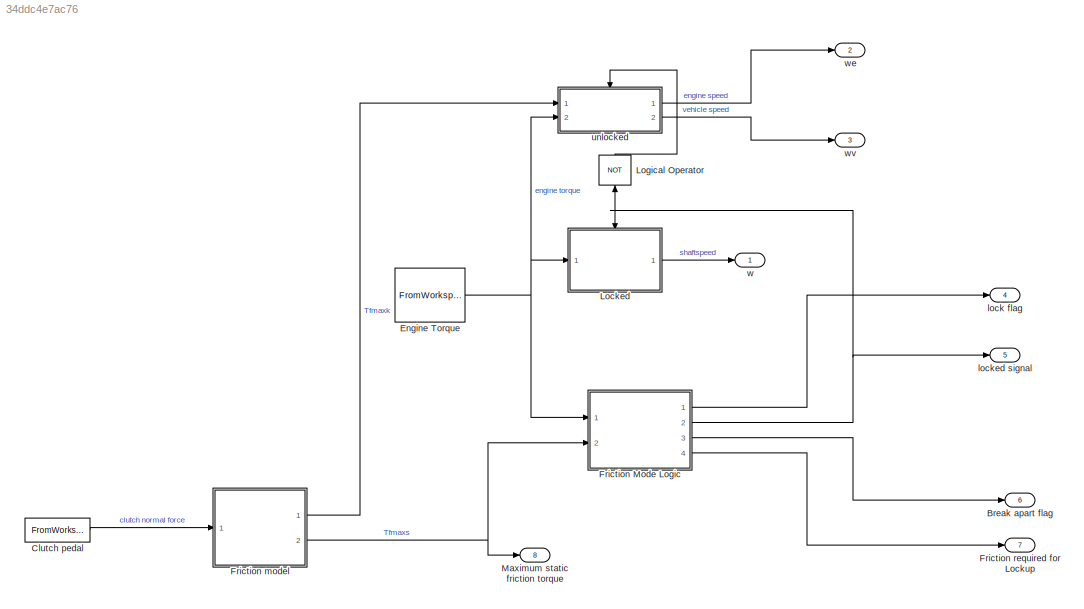
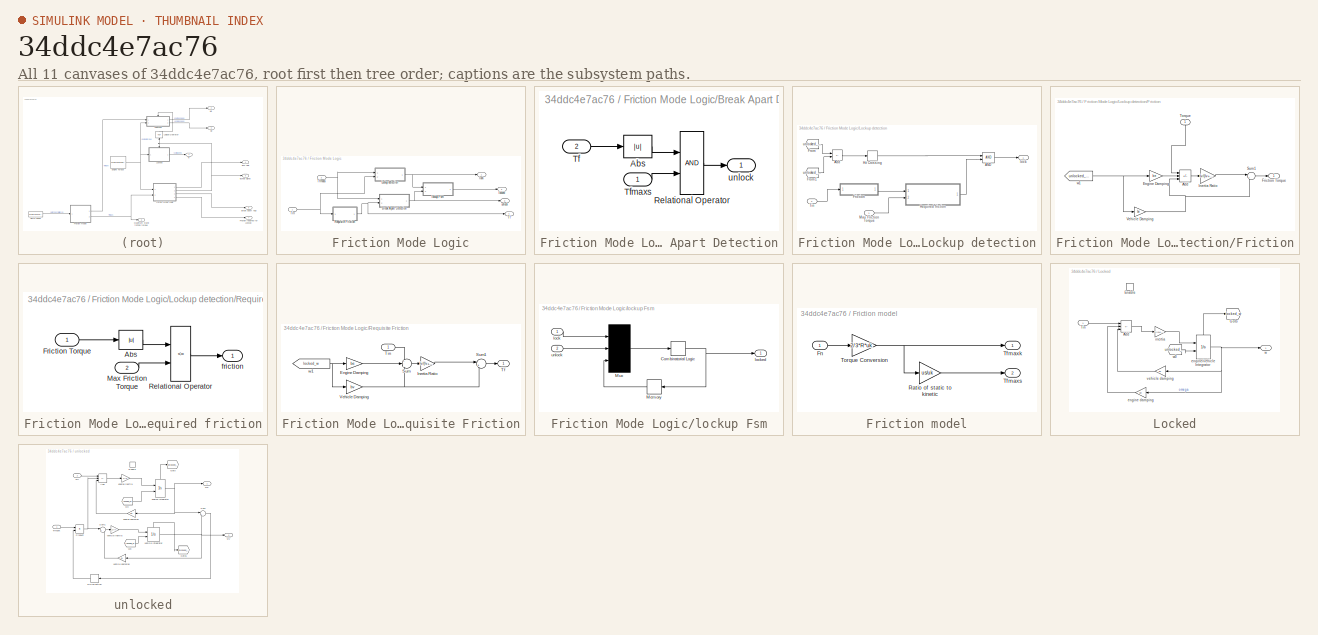
[diagram: thumbnail index - all 11 canvases of the model, root first then tree order]
MODEL slx_34ddc4e7ac76
KIND model
CONFIG AbsTol = auto
CONFIG EnableMultiTasking = off
CONFIG FixedStep = auto
CONFIG InitFcn = Fn=[0 0;1 0.8;2 1.6;3 1.6;4 1.6;5 1.6;6 0.8;7 0;8 0;9 0;10 0];\nTin=[1 2;2 2;3 2;4 2;5 2;6 0;7 0;8 0;9 0;10 0];
CONFIG MaxStep = auto
CONFIG MinStep = auto
CONFIG PostLoadFcn = Fn=[0 0;1 0.8;2 1.6;3 1.6;4 1.6;5 1.6;6 0.8;7 0;8 0;9 0;10 0];\nTin=[1 2;2 2;3 2;4 2;5 2;6 0;7 0;8 0;9 0;10 0];
CONFIG RelTol = 1e-3
CONFIG SampleTimeConstraint = Unconstrained
CONFIG Solver = VariableStepAuto
CONFIG SolverName = VariableStepAuto
CONFIG StartTime = 0.0
CONFIG StopTime = 10.0
BLOCK [Outport] Break apart  flag
  Port = 6
BLOCK [FromWorkspace] Clutch pedal
  VariableName = Fn
BLOCK [FromWorkspace] Engine Torque
  VariableName = Tin
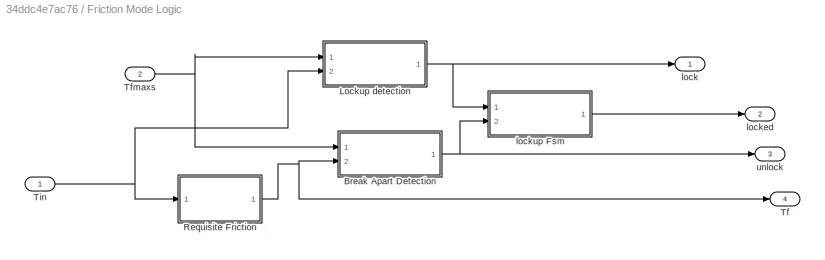
BLOCK [SubSystem] Friction Mode Logic
  Ports = [2, 4]
  RequestExecContextInheritance = off
BLOCK [SubSystem] Friction Mode Logic/Break  Apart Detection
  Ports = [2, 1]
  RequestExecContextInheritance = off
BLOCK [Abs] Friction Mode Logic/Break  Apart Detection/Abs
BLOCK [RelationalOperator] Friction Mode Logic/Break  Apart Detection/Relational Operator
  OutDataTypeStr = boolean
  Ports = [2, 1]
BLOCK [Inport] Friction Mode Logic/Break  Apart Detection/Tf
  Port = 2
BLOCK [Inport] Friction Mode Logic/Break  Apart Detection/Tfmaxs
BLOCK [Outport] Friction Mode Logic/Break  Apart Detection/unlock
  InitialOutput = 0
  VectorParamsAs1DForOutWhenUnconnected = off
BLOCK [SubSystem] Friction Mode Logic/Lockup detection
  Ports = [2, 1]
  RequestExecContextInheritance = off
BLOCK [Logic] Friction Mode Logic/Lockup detection/AND
  AllPortsSameDT = off
  IconShape = distinctive
  OutDataTypeStr = boolean
  Ports = [2, 1]
BLOCK [Sum] Friction Mode Logic/Lockup detection/Add
  IconShape = rectangular
  Inputs = +-
  Ports = [2, 1]
BLOCK [SubSystem] Friction Mode Logic/Lockup detection/Friction
  Ports = [1, 1]
  RequestExecContextInheritance = off
BLOCK [Sum] Friction Mode Logic/Lockup detection/Friction/Add
  IconShape = rectangular
  Inputs = +--
  Ports = [3, 1]
BLOCK [Gain] Friction Mode Logic/Lockup detection/Friction/Engine Damping
  Gain = be
  NameLocation = top
  OutDataTypeStr = Inherit: Same as input
  ParamDataTypeStr = Inherit: Same as input
  SaturateOnIntegerOverflow = on
BLOCK [Outport] Friction Mode Logic/Lockup detection/Friction/Friction Torque
  InitialOutput = 0
  VectorParamsAs1DForOutWhenUnconnected = off
BLOCK [Gain] Friction Mode Logic/Lockup detection/Friction/Inertia Ratio
  Gain = Iv/(Iv+Ie)
  OutDataTypeStr = Inherit: Same as input
  ParamDataTypeStr = Inherit: Same as input
  SaturateOnIntegerOverflow = on
BLOCK [Sum] Friction Mode Logic/Lockup detection/Friction/Sum1
  InputSameDT = on
  Inputs = |++
  OutDataTypeStr = Inherit: Same as first input
  Ports = [2, 1]
  SaturateOnIntegerOverflow = on
BLOCK [Inport] Friction Mode Logic/Lockup detection/Friction/Torque
  NameLocation = left
BLOCK [Gain] Friction Mode Logic/Lockup detection/Friction/Vehicle Damping
  Gain = bv
  OutDataTypeStr = Inherit: Same as input
  ParamDataTypeStr = Inherit: Same as input
  SaturateOnIntegerOverflow = on
BLOCK [From] Friction Mode Logic/Lockup detection/Friction/w1
  GotoTag = unlocked_we
  TagVisibility = global
BLOCK [From] Friction Mode Logic/Lockup detection/From
  GotoTag = unlocked_we
  TagVisibility = global
BLOCK [From] Friction Mode Logic/Lockup detection/From1
  GotoTag = unlocked_wv
  TagVisibility = global
BLOCK [HitCross] Friction Mode Logic/Lockup detection/Hit Crossing
  Ports = [1, 1]
BLOCK [Inport] Friction Mode Logic/Lockup detection/Max Friction Torque
BLOCK [SubSystem] Friction Mode Logic/Lockup detection/Required friction
  Ports = [2, 1]
  RequestExecContextInheritance = off
BLOCK [Abs] Friction Mode Logic/Lockup detection/Required friction/Abs
BLOCK [Inport] Friction Mode Logic/Lockup detection/Required friction/Friction Torque
BLOCK [Inport] Friction Mode Logic/Lockup detection/Required friction/Max Friction Torque
  Port = 2
BLOCK [RelationalOperator] Friction Mode Logic/Lockup detection/Required friction/Relational Operator
  Operator = <=
  OutDataTypeStr = boolean
  Ports = [2, 1]
BLOCK [Outport] Friction Mode Logic/Lockup detection/Required friction/friction
  InitialOutput = 0
  VectorParamsAs1DForOutWhenUnconnected = off
BLOCK [Inport] Friction Mode Logic/Lockup detection/Tin
  Port = 2
BLOCK [Outport] Friction Mode Logic/Lockup detection/lock
BLOCK [SubSystem] Friction Mode Logic/Requisite Friction
  Ports = [1, 1]
  RequestExecContextInheritance = off
BLOCK [Gain] Friction Mode Logic/Requisite Friction/Engine Damping
  Gain = be
  NameLocation = top
  OutDataTypeStr = Inherit: Same as input
  ParamDataTypeStr = Inherit: Same as input
  SaturateOnIntegerOverflow = on
BLOCK [Gain] Friction Mode Logic/Requisite Friction/Inertia Ratio
  Gain = Iv/(Iv+Ie)
  OutDataTypeStr = Inherit: Same as input
  ParamDataTypeStr = Inherit: Same as input
  SaturateOnIntegerOverflow = on
BLOCK [Sum] Friction Mode Logic/Requisite Friction/Sum
  InputSameDT = on
  Inputs = +--
  OutDataTypeStr = Inherit: Same as first input
  Ports = [3, 1]
  SaturateOnIntegerOverflow = on
BLOCK [Sum] Friction Mode Logic/Requisite Friction/Sum1
  InputSameDT = on
  Inputs = |++
  OutDataTypeStr = Inherit: Same as first input
  Ports = [2, 1]
  SaturateOnIntegerOverflow = on
BLOCK [Outport] Friction Mode Logic/Requisite Friction/Tf
  InitialOutput = 0
  VectorParamsAs1DForOutWhenUnconnected = off
BLOCK [Inport] Friction Mode Logic/Requisite Friction/Tin
BLOCK [Gain] Friction Mode Logic/Requisite Friction/Vehicle Damping
  Gain = bv
  OutDataTypeStr = Inherit: Same as input
  ParamDataTypeStr = Inherit: Same as input
  SaturateOnIntegerOverflow = on
BLOCK [From] Friction Mode Logic/Requisite Friction/w1
  GotoTag = locked_w
  NameLocation = top
  TagVisibility = global
BLOCK [Outport] Friction Mode Logic/Tf
  Port = 4
BLOCK [Inport] Friction Mode Logic/Tfmaxs
  Port = 2
BLOCK [Inport] Friction Mode Logic/Tin
BLOCK [Outport] Friction Mode Logic/lock
BLOCK [Outport] Friction Mode Logic/locked
  Port = 2
BLOCK [SubSystem] Friction Mode Logic/lockup Fsm
  Ports = [2, 1]
  RequestExecContextInheritance = off
BLOCK [CombinatorialLogic] Friction Mode Logic/lockup Fsm/Combinatorial Logic
  TruthTable = [0;1;0;0;1;1;1;0]
BLOCK [Memory] Friction Mode Logic/lockup Fsm/Memory
BLOCK [Mux] Friction Mode Logic/lockup Fsm/Mux
  Inputs = 3
  Ports = [3, 1]
BLOCK [Inport] Friction Mode Logic/lockup Fsm/lock
  NameLocation = top
BLOCK [Outport] Friction Mode Logic/lockup Fsm/locked
  InitialOutput = 0
  VectorParamsAs1DForOutWhenUnconnected = off
BLOCK [Inport] Friction Mode Logic/lockup Fsm/unlock
  Port = 2
BLOCK [Outport] Friction Mode Logic/unlock
  Port = 3
BLOCK [SubSystem] Friction model
  Ports = [1, 2]
  RequestExecContextInheritance = off
BLOCK [Inport] Friction model/Fn
BLOCK [Gain] Friction model/Ratio of static to kinetic
  Gain = us/uk
  OutDataTypeStr = Inherit: Same as input
  ParamDataTypeStr = Inherit: Same as input
  SaturateOnIntegerOverflow = on
BLOCK [Outport] Friction model/Tfmaxk
  InitialOutput = 0
  VectorParamsAs1DForOutWhenUnconnected = off
BLOCK [Outport] Friction model/Tfmaxs
  InitialOutput = 0
  Port = 2
  VectorParamsAs1DForOutWhenUnconnected = off
BLOCK [Gain] Friction model/Torque Conversion
  Gain = 2/3*R*uk
  OutDataTypeStr = Inherit: Same as input
  ParamDataTypeStr = Inherit: Same as input
  SaturateOnIntegerOverflow = on
BLOCK [Outport] Friction required for Lockup
  Port = 7
BLOCK [SubSystem] Locked
  Ports = [1, 1, 1]
  RequestExecContextInheritance = off
BLOCK [Sum] Locked/Add
  IconShape = rectangular
  Inputs = +--
  Ports = [3, 1]
BLOCK [EnablePort] Locked/Enable
  Ports = []
  StatesWhenEnabling = reset
BLOCK [Goto] Locked/Goto
  GotoTag = locked_w
  TagVisibility = global
BLOCK [Inport] Locked/Tin
BLOCK [Gain] Locked/engine damping
  Gain = be
BLOCK [Integrator] Locked/engine//vehicle Integrator
  InitialConditionSource = external
  Ports = [2, 1, 0, 0, 1]
  ShowStatePort = on
BLOCK [Gain] Locked/inertia
  Gain = 1/(Ie+Iv)
BLOCK [Gain] Locked/vehicle damping
  Gain = bv
BLOCK [Outport] Locked/w
BLOCK [From] Locked/w0
  GotoTag = unlocked_we
  TagVisibility = global
BLOCK [Logic] Logical Operator
  AllPortsSameDT = off
  IconShape = distinctive
  NameLocation = right
  Operator = NOT
  OutDataTypeStr = boolean
  Ports = [1, 1]
BLOCK [Outport] Maximum static friction torque
  Port = 8
BLOCK [Outport] lock flag
  Port = 4
BLOCK [Outport] locked signal
  Port = 5
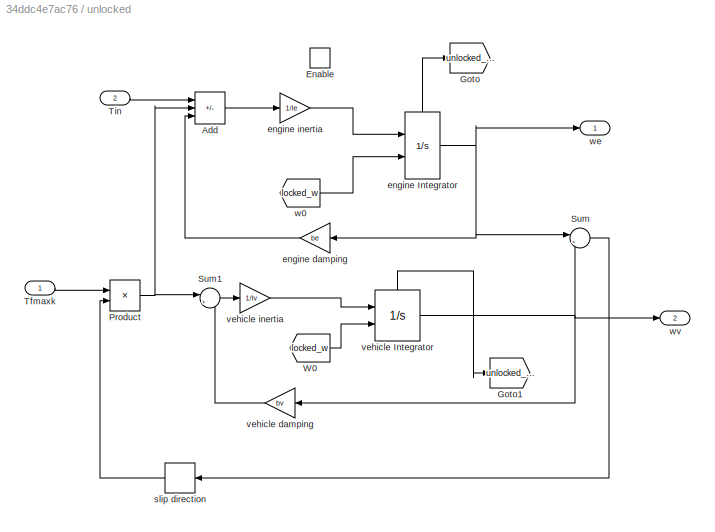
BLOCK [SubSystem] unlocked
  Ports = [2, 2, 1]
  RequestExecContextInheritance = off
BLOCK [Sum] unlocked/Add
  IconShape = rectangular
  Inputs = +--
  Ports = [3, 1]
BLOCK [EnablePort] unlocked/Enable
  Ports = []
  StatesWhenEnabling = reset
BLOCK [Goto] unlocked/Goto
  GotoTag = unlocked_we
  TagVisibility = global
BLOCK [Goto] unlocked/Goto1
  GotoTag = unlocked_wv
  TagVisibility = global
BLOCK [Product] unlocked/Product
  Ports = [2, 1]
BLOCK [Sum] unlocked/Sum
  Inputs = |+-
  Ports = [2, 1]
BLOCK [Sum] unlocked/Sum1
  Inputs = |+-
  Ports = [2, 1]
BLOCK [Inport] unlocked/Tfmaxk
BLOCK [Inport] unlocked/Tin
  Port = 2
BLOCK [From] unlocked/W0
  GotoTag = locked_w
  TagVisibility = global
BLOCK [Integrator] unlocked/engine Integrator
  InitialConditionSource = external
  Ports = [2, 1, 0, 0, 1]
  ShowStatePort = on
BLOCK [Gain] unlocked/engine damping
  Gain = be
BLOCK [Gain] unlocked/engine inertia
  Gain = 1/Ie
BLOCK [Signum] unlocked/slip direction
BLOCK [Integrator] unlocked/vehicle Integrator
  InitialConditionSource = external
  Ports = [2, 1, 0, 0, 1]
  ShowStatePort = on
BLOCK [Gain] unlocked/vehicle damping
  Gain = bv
BLOCK [Gain] unlocked/vehicle inertia
  Gain = 1/Iv
BLOCK [From] unlocked/w0
  GotoTag = locked_w
  TagVisibility = global
BLOCK [Outport] unlocked/we
BLOCK [Outport] unlocked/wv
  Port = 2
BLOCK [Outport] w
BLOCK [Outport] we
  Port = 2
BLOCK [Outport] wv
  Port = 3
LINE Clutch pedal:1 -> Friction model:1
NET Engine Torque:1 -> Friction Mode Logic:1, Locked:1, unlocked:2
LINE Friction Mode Logic/Break  Apart Detection/Abs:1 -> Friction Mode Logic/Break  Apart Detection/Relational Operator:1
LINE Friction Mode Logic/Break  Apart Detection/Relational Operator:1 -> Friction Mode Logic/Break  Apart Detection/unlock:1
LINE Friction Mode Logic/Break  Apart Detection/Tf:1 -> Friction Mode Logic/Break  Apart Detection/Abs:1
LINE Friction Mode Logic/Break  Apart Detection/Tfmaxs:1 -> Friction Mode Logic/Break  Apart Detection/Relational Operator:2
NET Friction Mode Logic/Break  Apart Detection:1 -> Friction Mode Logic/lockup Fsm:2, Friction Mode Logic/unlock:1
LINE Friction Mode Logic/Lockup detection/AND:1 -> Friction Mode Logic/Lockup detection/lock:1
LINE Friction Mode Logic/Lockup detection/Add:1 -> Friction Mode Logic/Lockup detection/Hit Crossing:1
LINE Friction Mode Logic/Lockup detection/Friction/Add:1 -> Friction Mode Logic/Lockup detection/Friction/Inertia Ratio:1
LINE Friction Mode Logic/Lockup detection/Friction/Engine Damping:1 -> Friction Mode Logic/Lockup detection/Friction/Add:2
LINE Friction Mode Logic/Lockup detection/Friction/Inertia Ratio:1 -> Friction Mode Logic/Lockup detection/Friction/Sum1:1
LINE Friction Mode Logic/Lockup detection/Friction/Sum1:1 -> Friction Mode Logic/Lockup detection/Friction/Friction Torque:1
LINE Friction Mode Logic/Lockup detection/Friction/Torque:1 -> Friction Mode Logic/Lockup detection/Friction/Add:1
NET Friction Mode Logic/Lockup detection/Friction/Vehicle Damping:1 -> Friction Mode Logic/Lockup detection/Friction/Add:3, Friction Mode Logic/Lockup detection/Friction/Sum1:2
NET Friction Mode Logic/Lockup detection/Friction/w1:1 -> Friction Mode Logic/Lockup detection/Friction/Engine Damping:1, Friction Mode Logic/Lockup detection/Friction/Vehicle Damping:1
LINE Friction Mode Logic/Lockup detection/Friction:1 -> Friction Mode Logic/Lockup detection/Required friction:1
LINE Friction Mode Logic/Lockup detection/From1:1 -> Friction Mode Logic/Lockup detection/Add:2
LINE Friction Mode Logic/Lockup detection/From:1 -> Friction Mode Logic/Lockup detection/Add:1
LINE Friction Mode Logic/Lockup detection/Hit Crossing:1 -> Friction Mode Logic/Lockup detection/AND:1
LINE Friction Mode Logic/Lockup detection/Max Friction Torque:1 -> Friction Mode Logic/Lockup detection/Required friction:2
LINE Friction Mode Logic/Lockup detection/Required friction/Abs:1 -> Friction Mode Logic/Lockup detection/Required friction/Relational Operator:1
LINE Friction Mode Logic/Lockup detection/Required friction/Friction Torque:1 -> Friction Mode Logic/Lockup detection/Required friction/Abs:1
LINE Friction Mode Logic/Lockup detection/Required friction/Max Friction Torque:1 -> Friction Mode Logic/Lockup detection/Required friction/Relational Operator:2
LINE Friction Mode Logic/Lockup detection/Required friction/Relational Operator:1 -> Friction Mode Logic/Lockup detection/Required friction/friction:1
LINE Friction Mode Logic/Lockup detection/Required friction:1 -> Friction Mode Logic/Lockup detection/AND:2
LINE Friction Mode Logic/Lockup detection/Tin:1 -> Friction Mode Logic/Lockup detection/Friction:1
NET Friction Mode Logic/Lockup detection:1 -> Friction Mode Logic/lock:1, Friction Mode Logic/lockup Fsm:1
LINE Friction Mode Logic/Requisite Friction/Engine Damping:1 -> Friction Mode Logic/Requisite Friction/Sum:2
LINE Friction Mode Logic/Requisite Friction/Inertia Ratio:1 -> Friction Mode Logic/Requisite Friction/Sum1:1
LINE Friction Mode Logic/Requisite Friction/Sum1:1 -> Friction Mode Logic/Requisite Friction/Tf:1
LINE Friction Mode Logic/Requisite Friction/Sum:1 -> Friction Mode Logic/Requisite Friction/Inertia Ratio:1
LINE Friction Mode Logic/Requisite Friction/Tin:1 -> Friction Mode Logic/Requisite Friction/Sum:1
NET Friction Mode Logic/Requisite Friction/Vehicle Damping:1 -> Friction Mode Logic/Requisite Friction/Sum1:2, Friction Mode Logic/Requisite Friction/Sum:3
NET Friction Mode Logic/Requisite Friction/w1:1 -> Friction Mode Logic/Requisite Friction/Engine Damping:1, Friction Mode Logic/Requisite Friction/Vehicle Damping:1
NET Friction Mode Logic/Requisite Friction:1 -> Friction Mode Logic/Break  Apart Detection:2, Friction Mode Logic/Tf:1
NET Friction Mode Logic/Tfmaxs:1 -> Friction Mode Logic/Break  Apart Detection:1, Friction Mode Logic/Lockup detection:1
NET Friction Mode Logic/Tin:1 -> Friction Mode Logic/Lockup detection:2, Friction Mode Logic/Requisite Friction:1
NET Friction Mode Logic/lockup Fsm/Combinatorial Logic:1 -> Friction Mode Logic/lockup Fsm/Memory:1, Friction Mode Logic/lockup Fsm/locked:1
LINE Friction Mode Logic/lockup Fsm/Memory:1 -> Friction Mode Logic/lockup Fsm/Mux:3
LINE Friction Mode Logic/lockup Fsm/Mux:1 -> Friction Mode Logic/lockup Fsm/Combinatorial Logic:1
LINE Friction Mode Logic/lockup Fsm/lock:1 -> Friction Mode Logic/lockup Fsm/Mux:1
LINE Friction Mode Logic/lockup Fsm/unlock:1 -> Friction Mode Logic/lockup Fsm/Mux:2
LINE Friction Mode Logic/lockup Fsm:1 -> Friction Mode Logic/locked:1
LINE Friction Mode Logic:1 -> lock flag:1
NET Friction Mode Logic:2 -> Locked:enable, Logical Operator:1, locked signal:1
LINE Friction Mode Logic:3 -> Break apart  flag:1
LINE Friction Mode Logic:4 -> Friction required for Lockup:1
LINE Friction model/Fn:1 -> Friction model/Torque Conversion:1
LINE Friction model/Ratio of static to kinetic:1 -> Friction model/Tfmaxs:1
NET Friction model/Torque Conversion:1 -> Friction model/Ratio of static to kinetic:1, Friction model/Tfmaxk:1
LINE Friction model:1 -> unlocked:1
NET Friction model:2 -> Friction Mode Logic:2, Maximum static friction torque:1
LINE Locked/Add:1 -> Locked/inertia:1
LINE Locked/Tin:1 -> Locked/Add:1
LINE Locked/engine damping:1 -> Locked/Add:2
NET Locked/engine//vehicle Integrator:1 -> Locked/engine damping:1, Locked/vehicle damping:1, Locked/w:1
LINE Locked/engine//vehicle Integrator:state -> Locked/Goto:1
LINE Locked/inertia:1 -> Locked/engine//vehicle Integrator:1
LINE Locked/vehicle damping:1 -> Locked/Add:3
LINE Locked/w0:1 -> Locked/engine//vehicle Integrator:2
LINE Locked:1 -> w:1
LINE Logical Operator:1 -> unlocked:enable
LINE unlocked/Add:1 -> unlocked/engine inertia:1
NET unlocked/Product:1 -> unlocked/Add:2, unlocked/Sum1:1
LINE unlocked/Sum1:1 -> unlocked/vehicle inertia:1
LINE unlocked/Sum:1 -> unlocked/slip direction:1
LINE unlocked/Tfmaxk:1 -> unlocked/Product:1
LINE unlocked/Tin:1 -> unlocked/Add:1
LINE unlocked/W0:1 -> unlocked/vehicle Integrator:2
NET unlocked/engine Integrator:1 -> unlocked/Sum:1, unlocked/engine damping:1, unlocked/we:1
LINE unlocked/engine Integrator:state -> unlocked/Goto:1
LINE unlocked/engine damping:1 -> unlocked/Add:3
LINE unlocked/engine inertia:1 -> unlocked/engine Integrator:1
LINE unlocked/slip direction:1 -> unlocked/Product:2
NET unlocked/vehicle Integrator:1 -> unlocked/Sum:2, unlocked/vehicle damping:1, unlocked/wv:1
LINE unlocked/vehicle Integrator:state -> unlocked/Goto1:1
LINE unlocked/vehicle damping:1 -> unlocked/Sum1:2
LINE unlocked/vehicle inertia:1 -> unlocked/vehicle Integrator:1
LINE unlocked/w0:1 -> unlocked/engine Integrator:2
LINE unlocked:1 -> we:1
LINE unlocked:2 -> wv:1
note: NET lines group one-source signal fan-out (src -> all destinations, sorted); 1:1 wires keep LINE
